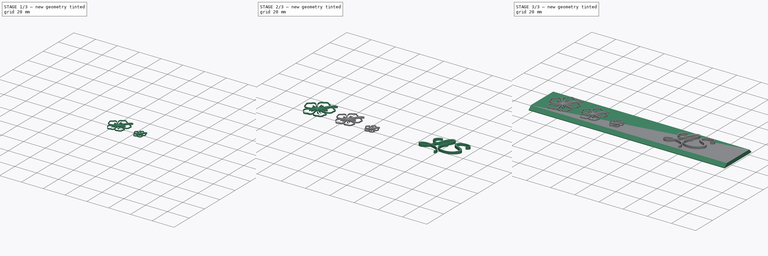
[diagram: build sequence overview — one tinted view per stage of 3, left to right]
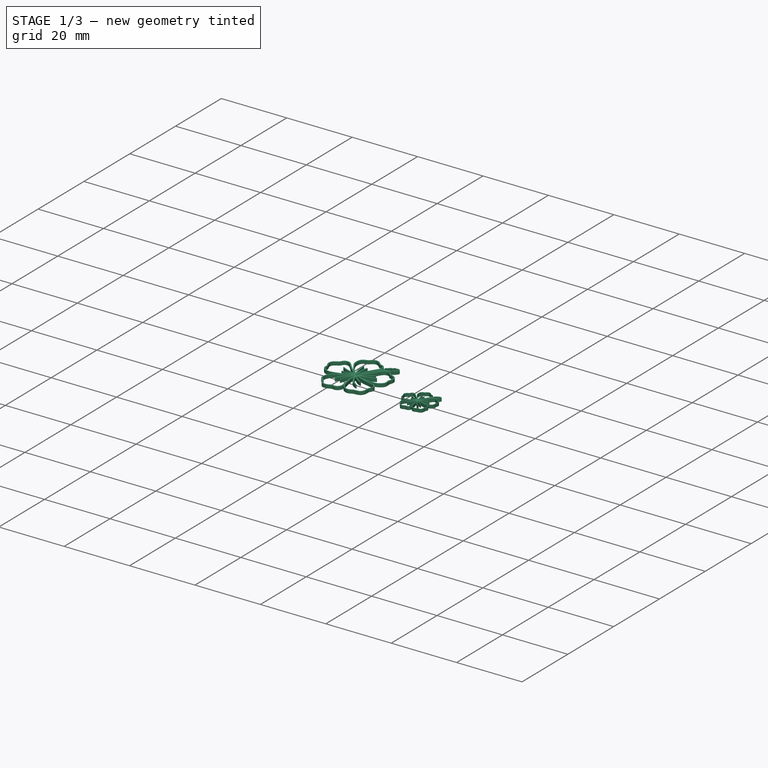
[diagram: stage 1 of 3 — iso view after this stage's code; geometry added in this stage tinted green]
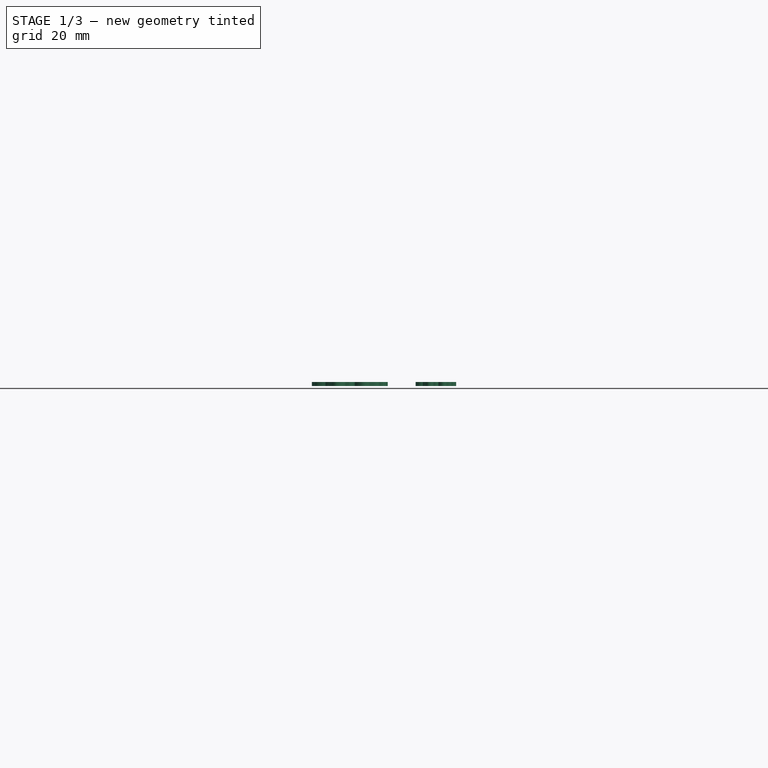
[diagram: stage 1 of 3 — front view after this stage's code; geometry added in this stage tinted green]
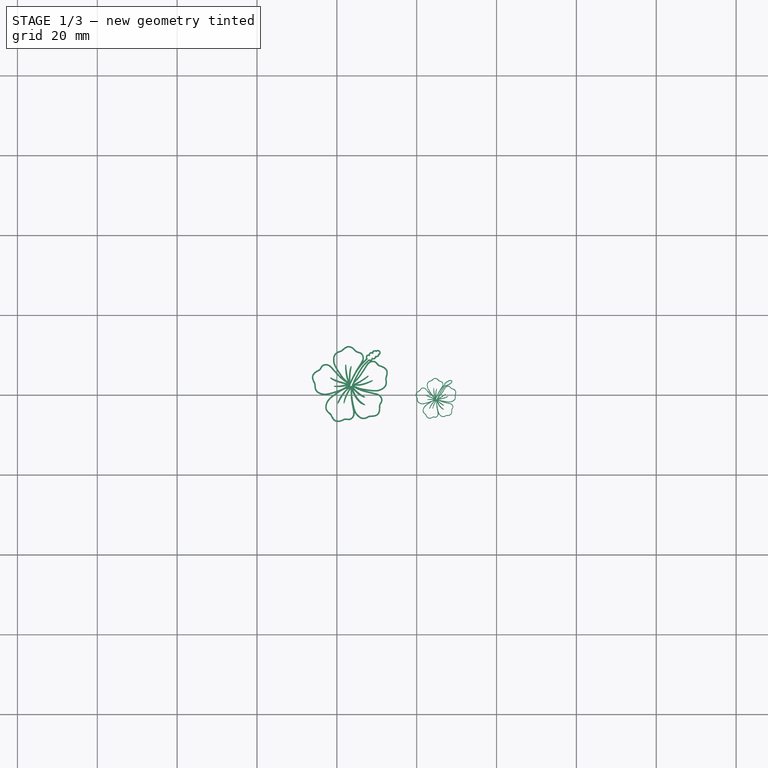
[diagram: stage 1 of 3 — top view after this stage's code; geometry added in this stage tinted green]
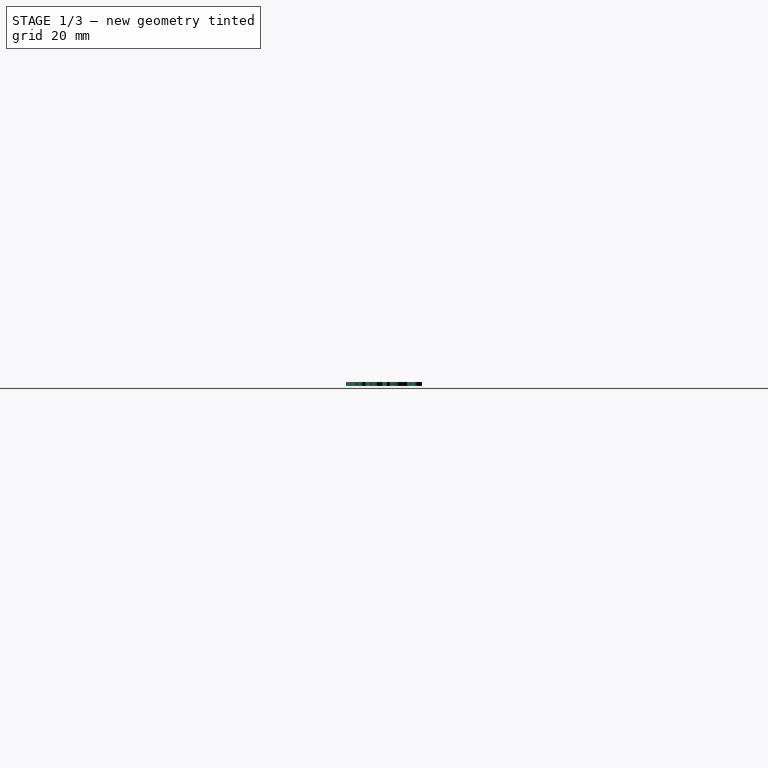
[diagram: stage 1 of 3 — right view after this stage's code; geometry added in this stage tinted green]
FCSTD DOCUMENT  (FreeCAD 0.20R29603 (Git))
Label: LS_Strip
License: All rights reserved
LicenseURL: http://en.wikipedia.org/wiki/All_rights_reserved
objects: Part::Feature×8, Part::Extrusion×4, Part::FeaturePython×3, Spreadsheet::Sheet×1, Sketcher::SketchObject×1, PartDesign::Pad×1, PartDesign::Chamfer×1, PartDesign::Body×1, App::Part×1, Part::Part2DObjectPython×1
note: 22 computed .brp shape members not serialized (recipe doc carries the construction recipe); baked Part::Feature solids carry a one-line shape summary decoded from their .brp

FEATURE [Part::Extrusion] Extrude003
  Base = -> Clone001
  Dir = (0,0,1)
  DirMode = 2
  FaceMakerClass = Part::FaceMakerBullseye
  LengthFwd = 1
  LengthRev = 0
  Solid = true
  Symmetric = false
FEATURE [Part::Extrusion] Extrude004
  Base = -> Clone002
  Dir = (0,0,1)
  DirMode = 2
  FaceMakerClass = Part::FaceMakerBullseye
  LengthFwd = 1
  LengthRev = 0
  Solid = true
  Symmetric = false
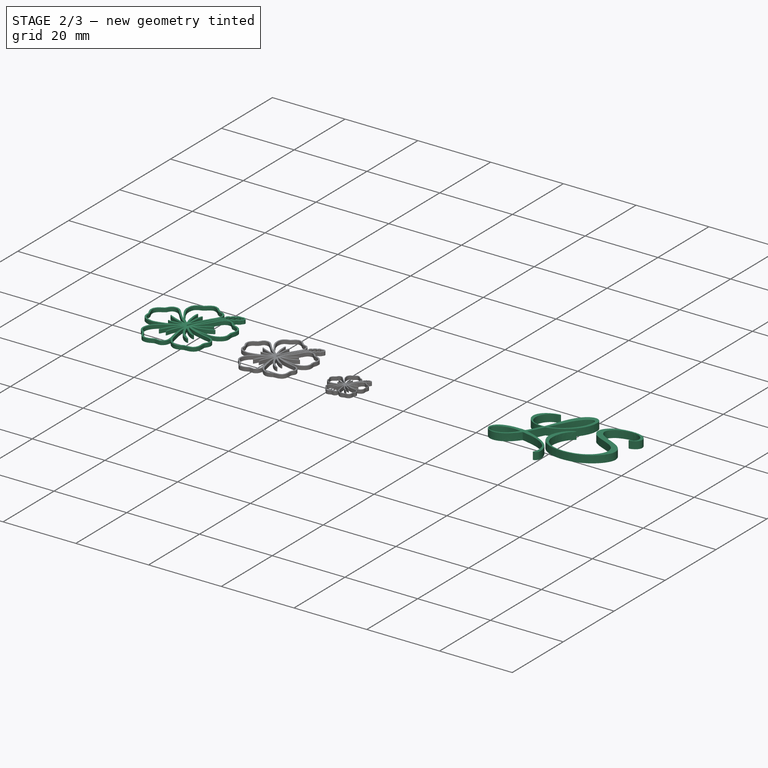
[diagram: stage 2 of 3 — iso view after this stage's code; geometry added in this stage tinted green]
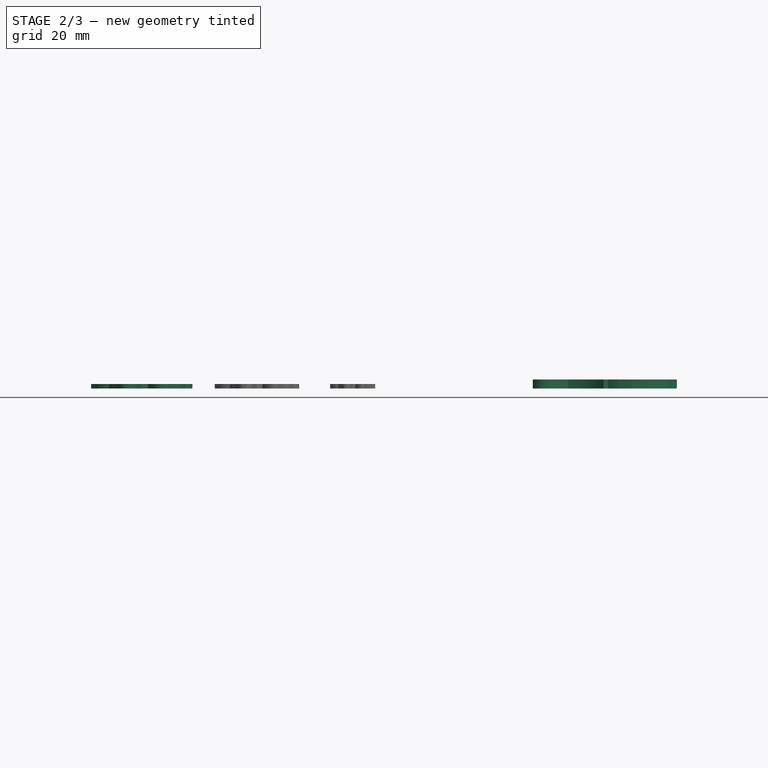
[diagram: stage 2 of 3 — front view after this stage's code; geometry added in this stage tinted green]
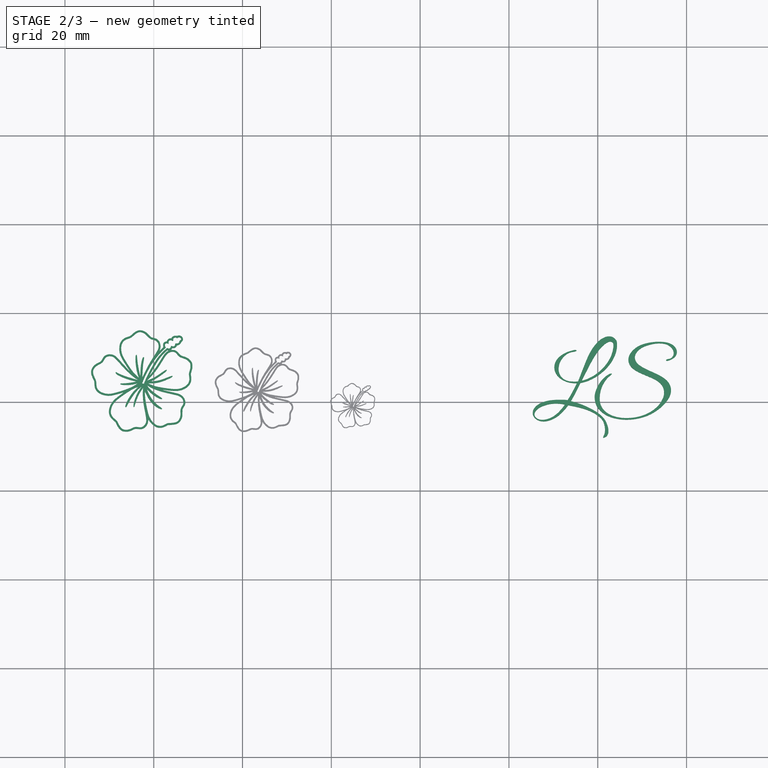
[diagram: stage 2 of 3 — top view after this stage's code; geometry added in this stage tinted green]
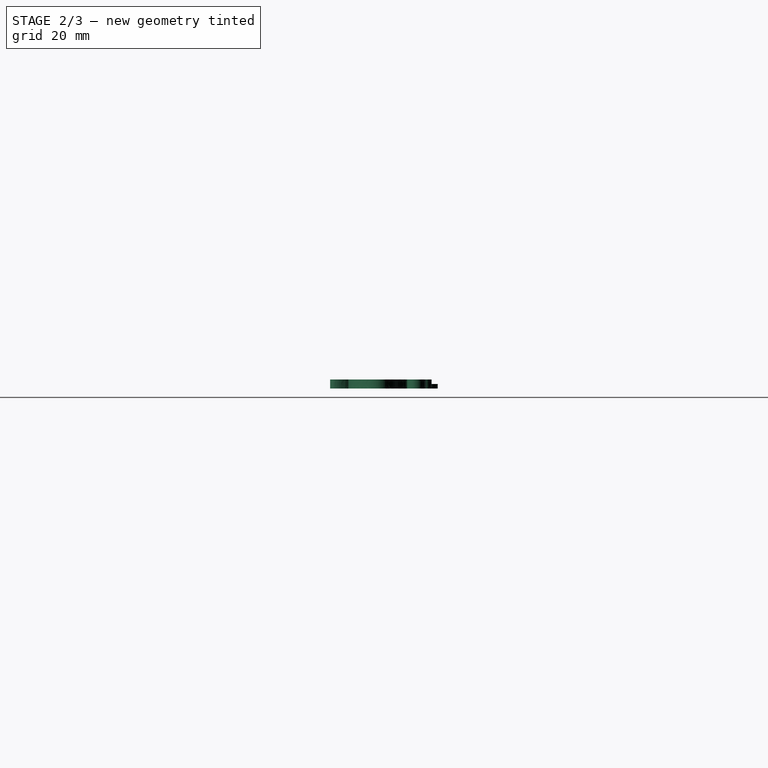
[diagram: stage 2 of 3 — right view after this stage's code; geometry added in this stage tinted green]
FEATURE [PartDesign::Body] Body
  Group = -> [Sketch,Pad,Chamfer]
  Origin = -> Origin001
  Tip = -> Chamfer
FEATURE [App::Part] Part  label="Strip"
  Group = -> [Body]
  Origin = -> Origin
FEATURE [Part::Part2DObjectPython] ShapeString  # Draft 2D object (typed FeaturePython)
  FontFile = <userpath>/3D_Printing/Fonts/Great_Vibes/GreatVibes-Regular.ttf
  MakeFace = true
  Placement = pos=(105.45,-22.34,3) rot=(0,0,1;0rad)
  Size = 8
  String = LS
  Tracking = 0
FEATURE [Part::Extrusion] Extrude002
  Base = -> ShapeString
  Dir = (0,0,1)
  DirMode = 2
  FaceMakerClass = Part::FaceMakerBullseye
  LengthFwd = 2
  LengthRev = 0
  Solid = false
  Symmetric = false
FEATURE [Part::Feature] path2
  shape: bbox 126.9 x 127.1 x 2e-07 mm, 0 faces, 0 solids (baked)
FEATURE [Part::Feature] path2001
  shape: bbox 47.22 x 56.97 x 2e-07 mm, 0 faces, 0 solids (baked)
FEATURE [Part::Feature] path2002
  shape: bbox 49.04 x 58.04 x 2e-07 mm, 0 faces, 0 solids (baked)
FEATURE [Part::Feature] path2003
  shape: bbox 23.74 x 31.7 x 2e-07 mm, 0 faces, 0 solids (baked)
FEATURE [Part::Feature] path2004
  shape: bbox 53.99 x 47.24 x 2e-07 mm, 0 faces, 0 solids (baked)
FEATURE [Part::Feature] path2005
  shape: bbox 56.21 x 47.65 x 2e-07 mm, 0 faces, 0 solids (baked)
FEATURE [Part::Feature] path2006
  shape: bbox 48.55 x 50.6 x 2e-07 mm, 0 faces, 0 solids (baked)
FEATURE [Part::Feature] path2007
  shape: bbox 44.85 x 54.15 x 2e-07 mm, 0 faces, 0 solids (baked)
FEATURE [Part::FeaturePython] Clone  label="BigFlower"  # Draft clone (typed FeaturePython)
  AttacherType = Attacher::AttachEngine3D
  Fuse = false
  Objects = -> [path2,path2001,path2002,path2003,path2004,path2005,path2006,path2007]
  Placement = pos=(-7,9,3) rot=(0,0,1;0rad)
  Scale = (0.18,0.18,0.18)
FEATURE [Part::FeaturePython] Clone001  label="MedFlower"  # Draft clone (typed FeaturePython)
  AttacherType = Attacher::AttachEngine3D
  Fuse = false
  Objects = -> [path2007,path2,path2001,path2002,path2003,path2004,path2005,path2006]
  Placement = pos=(23,3,3) rot=(0,0,1;0rad)
  Scale = (0.15,0.15,0.15)
FEATURE [Part::FeaturePython] Clone002  label="SmlFlower"  # Draft clone (typed FeaturePython)
  AttacherType = Attacher::AttachEngine3D
  Fuse = false
  Objects = -> [path2007,path2,path2001,path2002,path2003,path2004,path2005,path2006]
  Placement = pos=(54,-10,3) rot=(0,0,1;0rad)
  Scale = (0.08,0.08,0.08)
FEATURE [Part::Extrusion] Extrude
  Base = -> Clone
  Dir = (0,0,1)
  DirMode = 2
  FaceMakerClass = Part::FaceMakerBullseye
  LengthFwd = 1
  LengthRev = 0
  Solid = true
  Symmetric = false
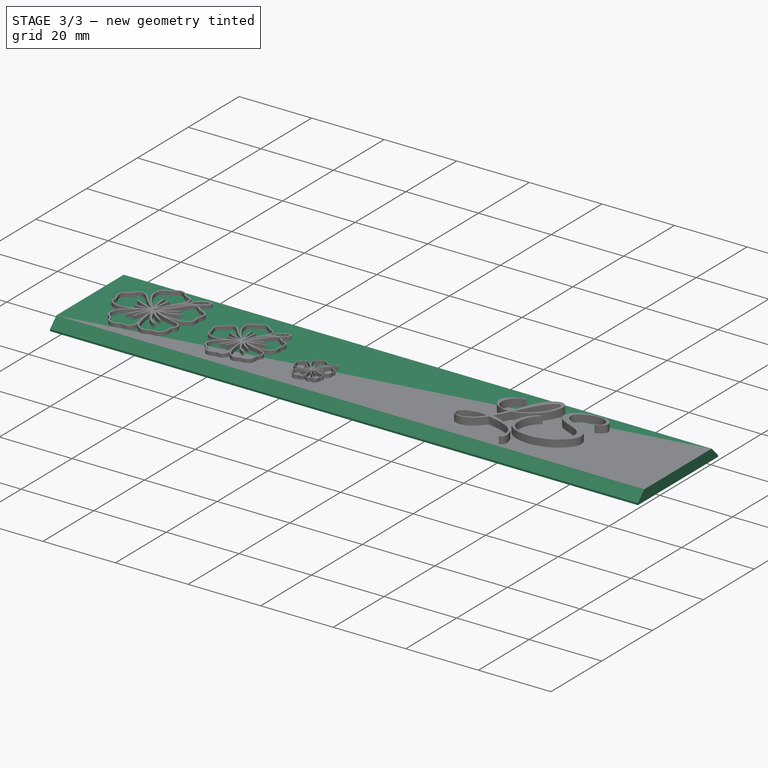
[diagram: stage 3 of 3 — iso view after this stage's code; geometry added in this stage tinted green]
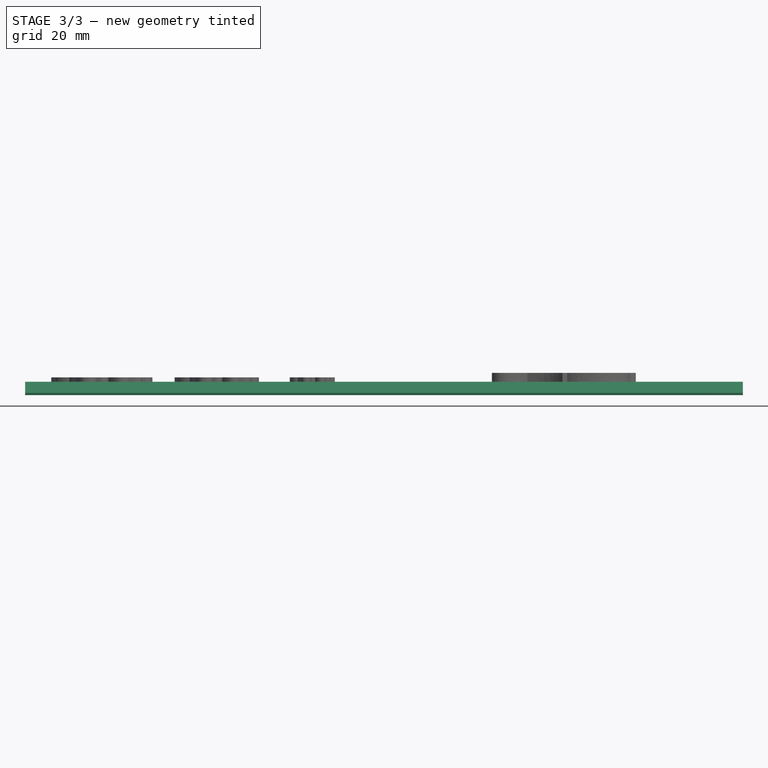
[diagram: stage 3 of 3 — front view after this stage's code; geometry added in this stage tinted green]
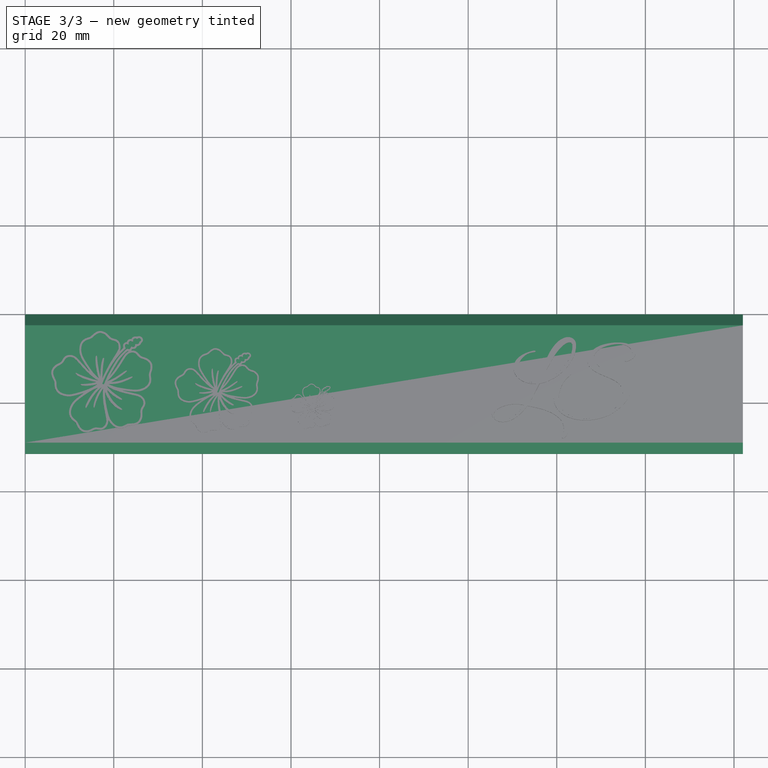
[diagram: stage 3 of 3 — top view after this stage's code; geometry added in this stage tinted green]
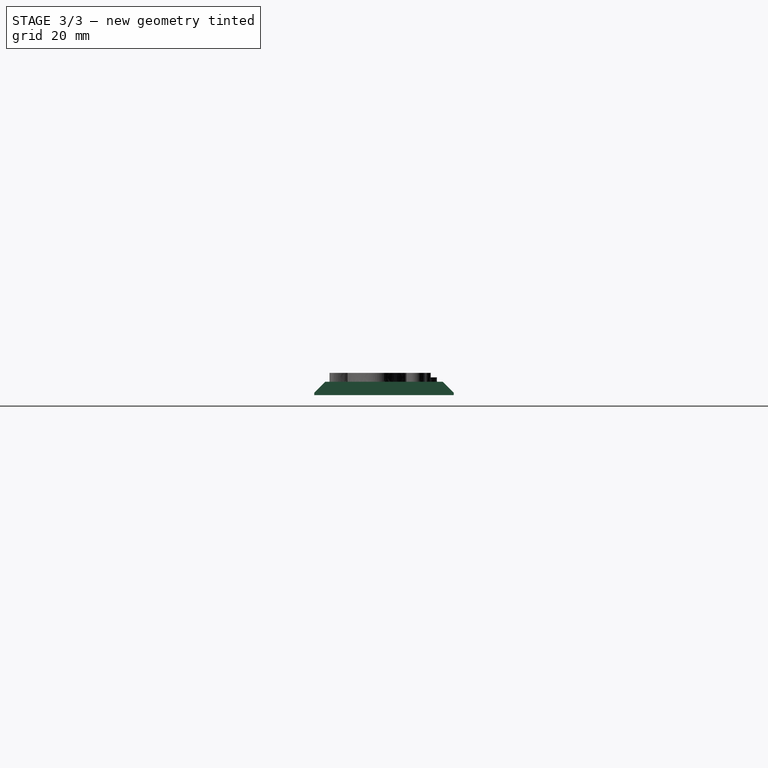
[diagram: stage 3 of 3 — right view after this stage's code; geometry added in this stage tinted green]
FEATURE [Spreadsheet::Sheet] Spreadsheet  label="params"
  cells = A1=length; B1(length)=162; A2=width; B2(width)=31.5; A3=height; B3(height)=3; A4=chamfer; B4(chamfer)=2.5
FEATURE [Sketcher::SketchObject] Sketch
  FullyConstrained = true
  MapMode = 2
  expr: Constraints[8] = <<params>>.length
  expr: Constraints[9] = <<params>>.width
  sketch-geometry (4):
    g0: LineSegment StartX=0 StartY=9e-16 StartZ=0 EndX=162 EndY=9e-16 EndZ=0
    g1: LineSegment StartX=162 StartY=9e-16 StartZ=0 EndX=162 EndY=-31.5 EndZ=0
    g2: LineSegment StartX=162 StartY=-31.5 StartZ=0 EndX=0 EndY=-31.5 EndZ=0
    g3: LineSegment StartX=0 StartY=-31.5 StartZ=0 EndX=0 EndY=0 EndZ=0
  constraints (11):
    c: Coincident(g0,g1)
    c: Coincident(g1,g2)
    c: Coincident(g2,g3)
    c: Coincident(g3,g0)
    c: Horizontal(g0)
    c: Horizontal(g2)
    c: Vertical(g1)
    c: Vertical(g3)
    c: DistanceX(g0,g0) = 162
    c: DistanceY(g1,g0) = 31.5
    c: Coincident(g0,g-1)
FEATURE [PartDesign::Pad] Pad
  Direction = (0,0,1)
  Length = 3
  Length2 = 10
  Profile = -> Sketch
  ReferenceAxis = -> Sketch [N_Axis]
  Type = 0
  expr: Length = <<params>>.height
FEATURE [PartDesign::Chamfer] Chamfer
  Angle = 45
  Base = -> Pad [Edge10,Edge4]
  BaseFeature = -> Pad
  ChamferType = 0
  FlipDirection = false
  Size = 2.5
  Size2 = 1
  SupportTransform = false
  UseAllEdges = false
  expr: Size = <<params>>.chamfer
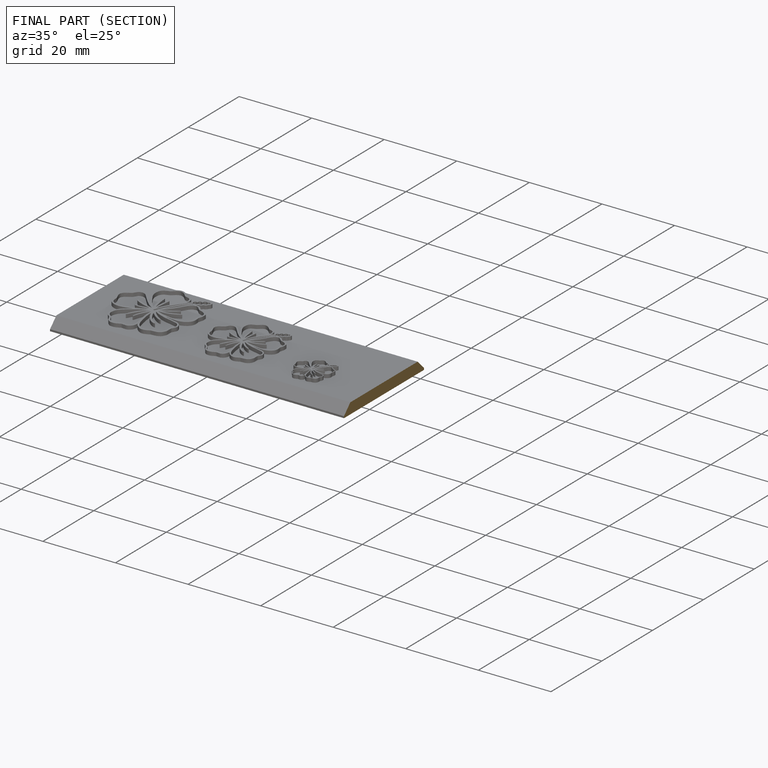
[diagram: finished part — half-section view (interior)]
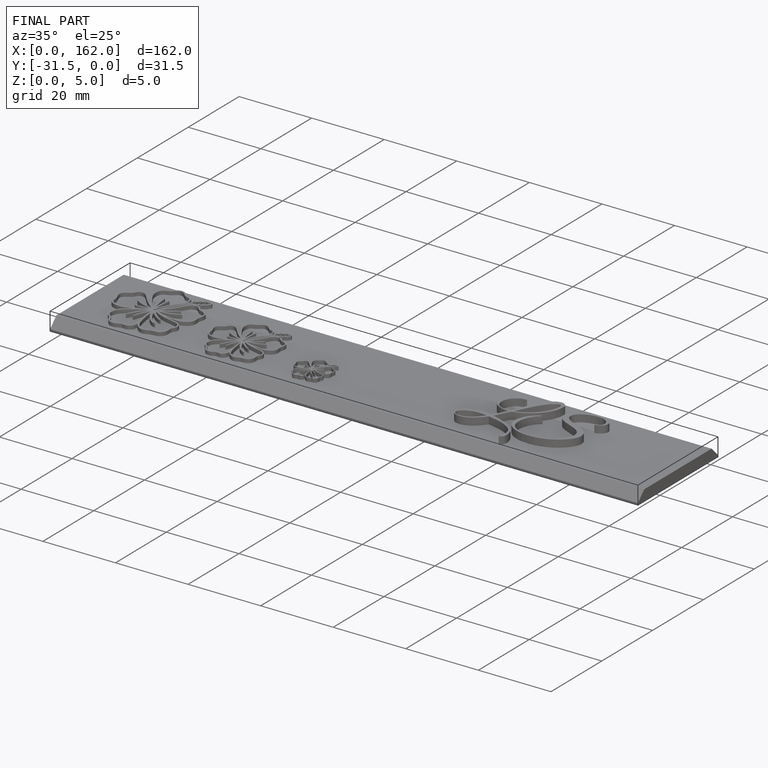
[diagram: finished part — iso view with bounding-box wireframe]
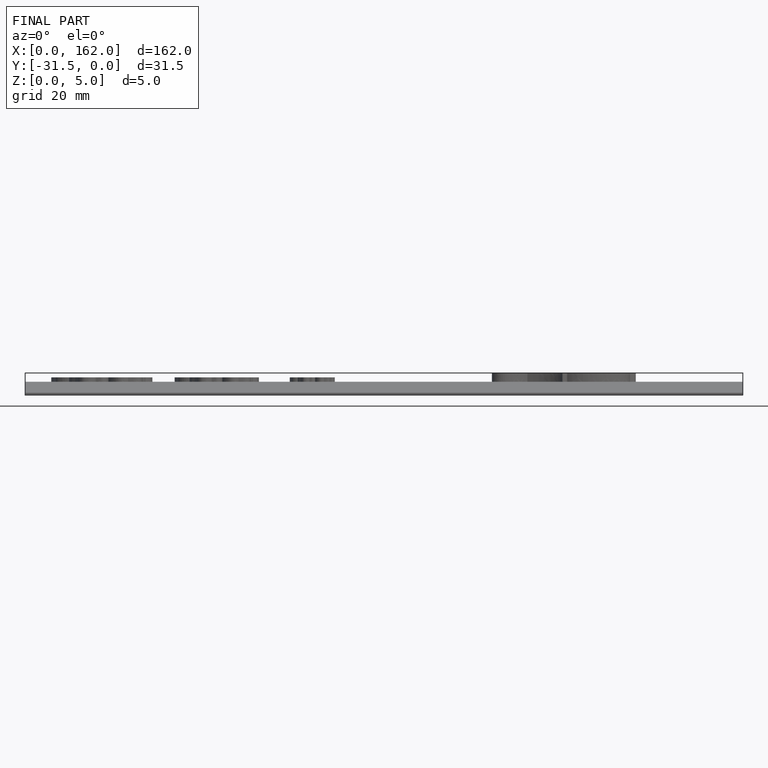
[diagram: finished part — front view with bounding-box wireframe]
